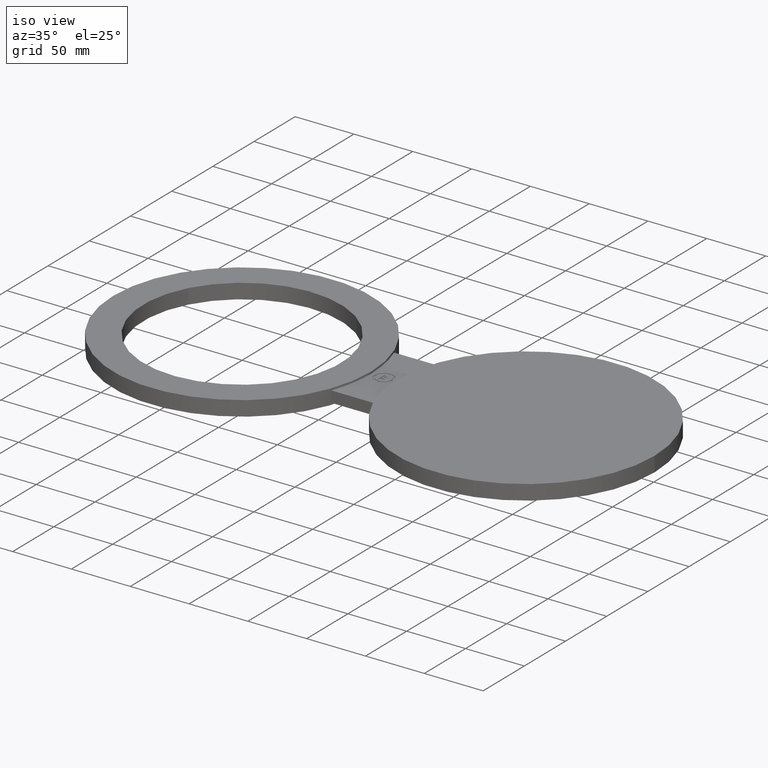
[diagram: clean part render]
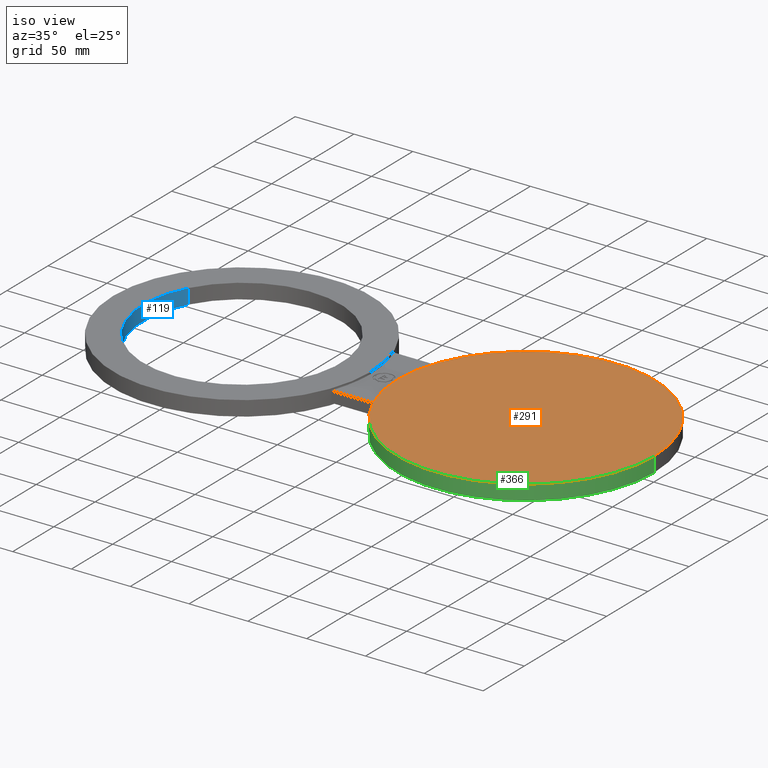
[diagram: same view with three faces highlighted in distinct colors, each labeled with its STEP entity id]
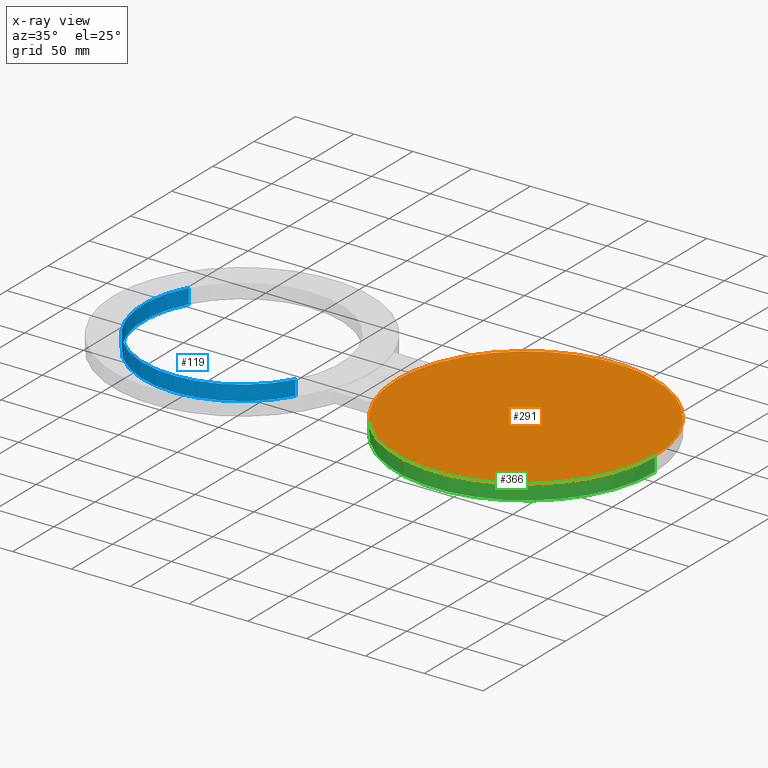
[diagram: x-ray of the same camera — body ghosted, the three highlighted faces saturated]
A machine part, iso view with three faces highlighted in distinct colors.
The next image is the same camera in x-ray (body ghosted, the three faces saturated) — at least one of them is partly hidden behind the body in this view.
Their STEP definitions:

[orange] entity #291 — the highlighted planar face has unit normal (0, 0, 1).
#78=AXIS2_PLACEMENT_3D('Plane Axis2P3D',#75,#76,#77) ;
#275=AXIS2_PLACEMENT_3D('Circle Axis2P3D',#273,#274,$) ;
#284=AXIS2_PLACEMENT_3D('Circle Axis2P3D',#282,#283,$) ;
#75=CARTESIAN_POINT('Axis2P3D Location',(0.,0.,0.250000000001)) ;
#273=CARTESIAN_POINT('Axis2P3D Location',(9.50000000004,1.16341445919E-015,0.250000000001)) ;
#277=CARTESIAN_POINT('Vertex',(5.19000000002,1.69123722963E-015,0.250000000001)) ;
#279=CARTESIAN_POINT('Vertex',(13.8100000001,1.07768918325E-016,0.250000000001)) ;
#282=CARTESIAN_POINT('Axis2P3D Location',(9.50000000004,1.16341445919E-015,0.250000000001)) ;
#76=DIRECTION('Axis2P3D Direction',(0.,0.,0.0393700787402)) ;
#77=DIRECTION('Axis2P3D XDirection',(0.0393700787402,0.,0.)) ;
#274=DIRECTION('Axis2P3D Direction',(0.,0.,0.0393700787402)) ;
#283=DIRECTION('Axis2P3D Direction',(0.,0.,0.0393700787402)) ;
#288=ORIENTED_EDGE('',*,*,#281,.T.) ;
#289=ORIENTED_EDGE('',*,*,#286,.T.) ;
#291=ADVANCED_FACE('PartBody',(#290),#79,.T.) ;
#276=CIRCLE('generated circle',#275,4.31000000002) ;
#285=CIRCLE('generated circle',#284,4.31000000002) ;
#281=EDGE_CURVE('',#278,#280,#276,.T.) ;
#286=EDGE_CURVE('',#280,#278,#285,.T.) ;
#287=EDGE_LOOP('',(#288,#289)) ;
#290=FACE_OUTER_BOUND('',#287,.T.) ;
#79=PLANE('',#78) ;
#278=VERTEX_POINT('',#277) ;
#280=VERTEX_POINT('',#279) ;

[blue] entity #119 — the highlighted cylindrical surface (partial cylindrical patch) has radius 84.074 mm, axis along (0, -0, -1).
#38=AXIS2_PLACEMENT_3D('Cylinder Axis2P3D',#35,#36,#37) ;
#100=AXIS2_PLACEMENT_3D('Circle Axis2P3D',#98,#99,$) ;
#110=AXIS2_PLACEMENT_3D('Circle Axis2P3D',#108,#109,$) ;
#35=CARTESIAN_POINT('Axis2P3D Location',(8.52336574023E-017,-6.99353086378E-017,0.246062992127)) ;
#40=CARTESIAN_POINT('Line Origine',(-2.90479827987,1.58689853279,0.)) ;
#44=CARTESIAN_POINT('Vertex',(-2.90479827987,1.58689853279,-0.250000000001)) ;
#46=CARTESIAN_POINT('Vertex',(-2.90479827987,1.58689853279,0.250000000001)) ;
#53=CARTESIAN_POINT('Vertex',(2.90479827987,-1.58689853279,-0.250000000001)) ;
#56=CARTESIAN_POINT('Line Origine',(2.90479827987,-1.58689853279,0.)) ;
#60=CARTESIAN_POINT('Vertex',(2.90479827987,-1.58689853279,0.250000000001)) ;
#98=CARTESIAN_POINT('Axis2P3D Location',(1.39870617276E-016,-5.59482469102E-016,0.250000000001)) ;
#108=CARTESIAN_POINT('Axis2P3D Location',(8.52336574023E-017,-6.99353086378E-017,-0.250000000001)) ;
#36=DIRECTION('Axis2P3D Direction',(0.,-0.,-0.0393700787402)) ;
#37=DIRECTION('Axis2P3D XDirection',(0.0345504945626,-0.0188750212049,0.)) ;
#41=DIRECTION('Vector Direction',(0.,0.,-0.0393700787402)) ;
#57=DIRECTION('Vector Direction',(0.,0.,-0.0393700787402)) ;
#99=DIRECTION('Axis2P3D Direction',(0.,0.,0.0393700787402)) ;
#109=DIRECTION('Axis2P3D Direction',(0.,-0.,-0.0393700787402)) ;
#42=VECTOR('Line Direction',#41,0.0393700787402) ;
#58=VECTOR('Line Direction',#57,0.0393700787402) ;
#114=ORIENTED_EDGE('',*,*,#62,.F.) ;
#115=ORIENTED_EDGE('',*,*,#112,.F.) ;
#116=ORIENTED_EDGE('',*,*,#48,.T.) ;
#117=ORIENTED_EDGE('',*,*,#102,.T.) ;
#119=ADVANCED_FACE('PartBody',(#118),#39,.F.) ;
#101=CIRCLE('generated circle',#100,3.31000000001) ;
#111=CIRCLE('generated circle',#110,3.31000000001) ;
#39=CYLINDRICAL_SURFACE('generated cylinder',#38,3.31000000001) ;
#48=EDGE_CURVE('',#45,#47,#43,.F.) ;
#62=EDGE_CURVE('',#54,#61,#59,.F.) ;
#102=EDGE_CURVE('',#47,#61,#101,.T.) ;
#112=EDGE_CURVE('',#45,#54,#111,.F.) ;
#113=EDGE_LOOP('',(#114,#115,#116,#117)) ;
#118=FACE_OUTER_BOUND('',#113,.T.) ;
#43=LINE('Line',#40,#42) ;
#59=LINE('Line',#56,#58) ;
#45=VERTEX_POINT('',#44) ;
#47=VERTEX_POINT('',#46) ;
#54=VERTEX_POINT('',#53) ;
#61=VERTEX_POINT('',#60) ;

[green] entity #366 — the highlighted cylindrical surface (partial cylindrical patch) has radius 109.474 mm, axis along (0, 0, 1).
#265=AXIS2_PLACEMENT_3D('Circle Axis2P3D',#263,#264,$) ;
#275=AXIS2_PLACEMENT_3D('Circle Axis2P3D',#273,#274,$) ;
#295=AXIS2_PLACEMENT_3D('Cylinder Axis2P3D',#292,#293,#294) ;
#348=AXIS2_PLACEMENT_3D('Circle Axis2P3D',#346,#347,$) ;
#353=AXIS2_PLACEMENT_3D('Circle Axis2P3D',#351,#352,$) ;
#227=CARTESIAN_POINT('Vertex',(5.45944310771,-1.50000000001,-0.187500000001)) ;
#230=CARTESIAN_POINT('Line Origine',(5.45944310771,-1.50000000001,0.)) ;
#234=CARTESIAN_POINT('Vertex',(5.45944310771,-1.50000000001,0.187500000001)) ;
#258=CARTESIAN_POINT('Vertex',(13.8100000001,1.07768918325E-016,-0.250000000001)) ;
#260=CARTESIAN_POINT('Vertex',(5.19000000002,1.69123722963E-015,-0.250000000001)) ;
#263=CARTESIAN_POINT('Axis2P3D Location',(9.50000000004,1.16341445919E-015,-0.250000000001)) ;
#273=CARTESIAN_POINT('Axis2P3D Location',(9.50000000004,1.16341445919E-015,0.250000000001)) ;
#277=CARTESIAN_POINT('Vertex',(5.19000000002,1.69123722963E-015,0.250000000001)) ;
#279=CARTESIAN_POINT('Vertex',(13.8100000001,1.07768918325E-016,0.250000000001)) ;
#292=CARTESIAN_POINT('Axis2P3D Location',(9.50000000004,1.16341445919E-015,0.)) ;
#297=CARTESIAN_POINT('Line Origine',(5.19000000002,2.7468827705E-015,0.)) ;
#301=CARTESIAN_POINT('Vertex',(5.19000000002,1.69123722963E-015,0.187500000001)) ;
#304=CARTESIAN_POINT('Line Origine',(13.8100000001,1.07768918325E-016,0.)) ;
#309=CARTESIAN_POINT('Line Origine',(5.19000000002,2.7468827705E-015,0.)) ;
#313=CARTESIAN_POINT('Vertex',(5.19000000002,1.69123722963E-015,-0.187500000001)) ;
#346=CARTESIAN_POINT('Axis2P3D Location',(9.50000000004,1.16341445919E-015,0.187500000001)) ;
#351=CARTESIAN_POINT('Axis2P3D Location',(9.50000000004,1.16341445919E-015,-0.187500000001)) ;
#231=DIRECTION('Vector Direction',(0.,0.,0.0393700787402)) ;
#264=DIRECTION('Axis2P3D Direction',(0.,0.,0.0393700787402)) ;
#274=DIRECTION('Axis2P3D Direction',(0.,0.,0.0393700787402)) ;
#293=DIRECTION('Axis2P3D Direction',(0.,0.,0.0393700787402)) ;
#294=DIRECTION('Axis2P3D XDirection',(-0.0393700787402,4.82144409113E-018,0.)) ;
#298=DIRECTION('Vector Direction',(0.,0.,0.0393700787402)) ;
#305=DIRECTION('Vector Direction',(0.,0.,0.0393700787402)) ;
#310=DIRECTION('Vector Direction',(0.,0.,0.0393700787402)) ;
#347=DIRECTION('Axis2P3D Direction',(0.,0.,0.0393700787402)) ;
#352=DIRECTION('Axis2P3D Direction',(0.,0.,0.0393700787402)) ;
#232=VECTOR('Line Direction',#231,0.0393700787402) ;
#299=VECTOR('Line Direction',#298,0.0393700787402) ;
#306=VECTOR('Line Direction',#305,0.0393700787402) ;
#311=VECTOR('Line Direction',#310,0.0393700787402) ;
#357=ORIENTED_EDGE('',*,*,#315,.F.) ;
#358=ORIENTED_EDGE('',*,*,#267,.T.) ;
#359=ORIENTED_EDGE('',*,*,#308,.T.) ;
#360=ORIENTED_EDGE('',*,*,#281,.F.) ;
#361=ORIENTED_EDGE('',*,*,#303,.F.) ;
#362=ORIENTED_EDGE('',*,*,#350,.T.) ;
#363=ORIENTED_EDGE('',*,*,#236,.F.) ;
#364=ORIENTED_EDGE('',*,*,#355,.F.) ;
#366=ADVANCED_FACE('PartBody',(#365),#296,.T.) ;
#266=CIRCLE('generated circle',#265,4.31000000002) ;
#276=CIRCLE('generated circle',#275,4.31000000002) ;
#349=CIRCLE('generated circle',#348,4.31000000002) ;
#354=CIRCLE('generated circle',#353,4.31000000002) ;
#296=CYLINDRICAL_SURFACE('generated cylinder',#295,4.31000000002) ;
#236=EDGE_CURVE('',#228,#235,#233,.T.) ;
#267=EDGE_CURVE('',#261,#259,#266,.T.) ;
#281=EDGE_CURVE('',#278,#280,#276,.T.) ;
#303=EDGE_CURVE('',#302,#278,#300,.T.) ;
#308=EDGE_CURVE('',#259,#280,#307,.T.) ;
#315=EDGE_CURVE('',#261,#314,#312,.T.) ;
#350=EDGE_CURVE('',#302,#235,#349,.T.) ;
#355=EDGE_CURVE('',#314,#228,#354,.T.) ;
#356=EDGE_LOOP('',(#357,#358,#359,#360,#361,#362,#363,#364)) ;
#365=FACE_OUTER_BOUND('',#356,.T.) ;
#233=LINE('Line',#230,#232) ;
#300=LINE('Line',#297,#299) ;
#307=LINE('Line',#304,#306) ;
#312=LINE('Line',#309,#311) ;
#228=VERTEX_POINT('',#227) ;
#235=VERTEX_POINT('',#234) ;
#259=VERTEX_POINT('',#258) ;
#261=VERTEX_POINT('',#260) ;
#278=VERTEX_POINT('',#277) ;
#280=VERTEX_POINT('',#279) ;
#302=VERTEX_POINT('',#301) ;
#314=VERTEX_POINT('',#313) ;